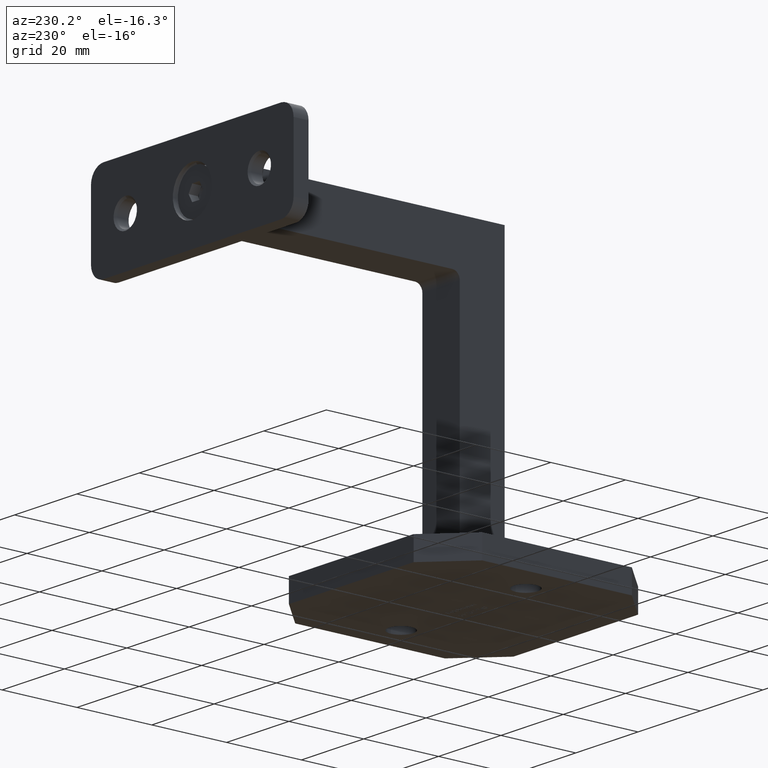
[diagram: clean part render]
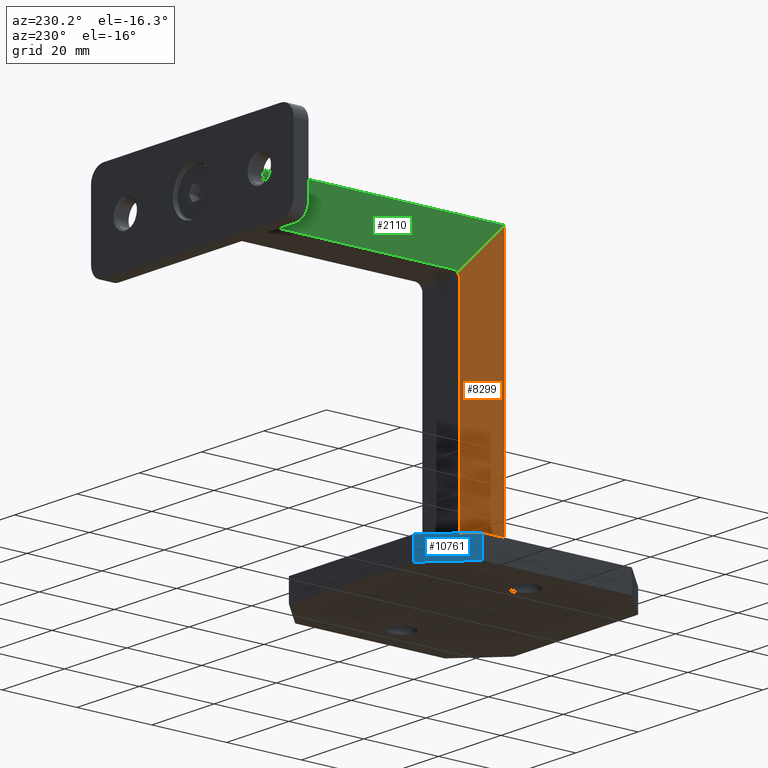
[diagram: same view with three faces highlighted in distinct colors, each labeled with its STEP entity id]
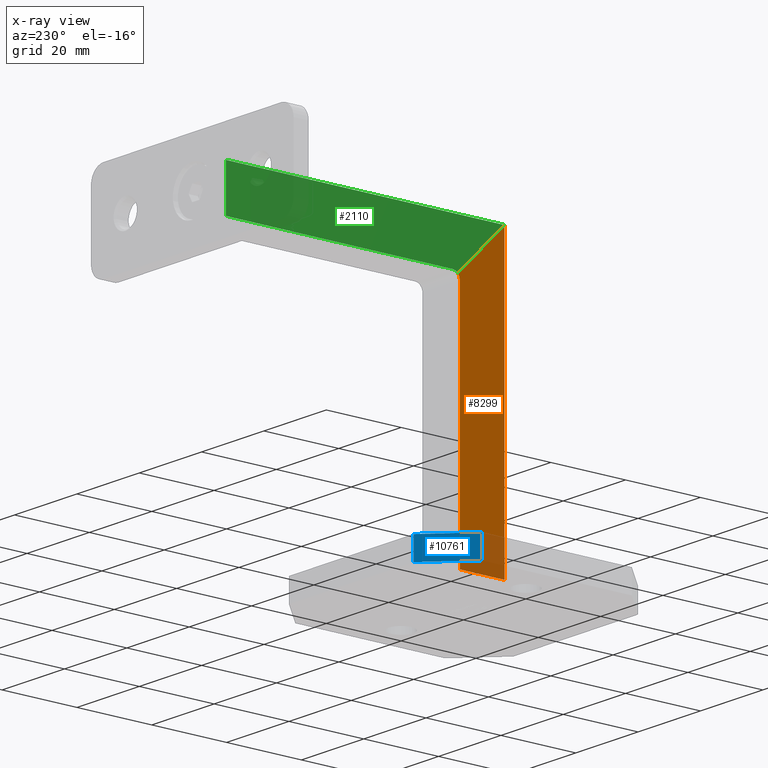
[diagram: x-ray of the same camera — body ghosted, the three highlighted faces saturated]
A machine part, auxiliary view with three faces highlighted in distinct colors.
The next image is the same camera in x-ray (body ghosted, the three faces saturated) — at least one of them is partly hidden behind the body in this view.
Their STEP definitions:

[orange] entity #8299 — the highlighted planar face has unit normal (-1, 0, 0).
#343 = EDGE_CURVE ( 'NONE', #11235, #4981, #14640, .T. ) ;
#377 = EDGE_CURVE ( 'NONE', #4981, #19620, #18167, .T. ) ;
#1007 = CARTESIAN_POINT ( 'NONE',  ( -5.999999999999999112, -6.000000000000000888, 3.070000000000003393 ) ) ;
#1370 = LINE ( 'NONE', #20113, #13351 ) ;
#2956 = CARTESIAN_POINT ( 'NONE',  ( -5.999999999999997335, 5.999999999999988454, 89.97056274847714974 ) ) ;
#3485 = CARTESIAN_POINT ( 'NONE',  ( -5.999999999999997335, 5.999999999999992006, 64.99999999999997158 ) ) ;
#4062 = VECTOR ( 'NONE', #15450, 1000.000000000000000 ) ;
#4668 = EDGE_CURVE ( 'NONE', #13799, #11235, #1370, .T. ) ;
#4721 = DIRECTION ( 'NONE',  ( -1.000000000000000000, 1.445602896647339410E-16, 1.770352960217306030E-32 ) ) ;
#4981 = VERTEX_POINT ( 'NONE', #3485 ) ;
#5536 = VECTOR ( 'NONE', #16904, 1000.000000000000000 ) ;
#5607 = DIRECTION ( 'NONE',  ( 0.000000000000000000, -1.000000000000000000, 2.081668171172168513E-14 ) ) ;
#6126 = LINE ( 'NONE', #14988, #5536 ) ;
#7038 = DIRECTION ( 'NONE',  ( -1.445602896647339410E-16, -1.000000000000000000, -0.000000000000000000 ) ) ;
#7383 = ORIENTED_EDGE ( 'NONE', *, *, #14973, .T. ) ;
#7425 = DIRECTION ( 'NONE',  ( 1.000000000000000000, -1.445602896647339410E-16, -1.770352960217306030E-32 ) ) ;
#8277 = CARTESIAN_POINT ( 'NONE',  ( -5.999999999999997335, 6.585786437626902412, 66.41421356237306384 ) ) ;
#8299 = ADVANCED_FACE ( 'NONE', ( #22687 ), #10227, .T. ) ;
#8374 = ORIENTED_EDGE ( 'NONE', *, *, #16254, .F. ) ;
#8852 = CARTESIAN_POINT ( 'NONE',  ( -5.999999999999999112, -6.000000000000011546, 78.99999999999997158 ) ) ;
#8960 = CARTESIAN_POINT ( 'NONE',  ( -5.999999999999999112, -6.000000000000000000, 3.070000000000000284 ) ) ;
#9432 = ORIENTED_EDGE ( 'NONE', *, *, #4668, .T. ) ;
#9656 = LINE ( 'NONE', #8960, #13492 ) ;
#10227 = PLANE ( 'NONE',  #22676 ) ;
#11235 = VERTEX_POINT ( 'NONE', #8277 ) ;
#13236 = ORIENTED_EDGE ( 'NONE', *, *, #377, .T. ) ;
#13351 = VECTOR ( 'NONE', #16620, 1000.000000000000000 ) ;
#13492 = VECTOR ( 'NONE', #7038, 1000.000000000000000 ) ;
#13799 = VERTEX_POINT ( 'NONE', #8852 ) ;
#14640 = CIRCLE ( 'NONE', #20690, 2.000000000000000000 ) ;
#14973 = EDGE_CURVE ( 'NONE', #19620, #23184, #9656, .T. ) ;
#14988 = CARTESIAN_POINT ( 'NONE',  ( -5.999999999999999112, -6.000000000000011546, 89.97056274847714974 ) ) ;
#15450 = DIRECTION ( 'NONE',  ( -0.000000000000000000, 1.224646799147353207E-16, -1.000000000000000000 ) ) ;
#15844 = DIRECTION ( 'NONE',  ( -1.445602896647339410E-16, -1.000000000000000000, 0.000000000000000000 ) ) ;
#16254 = EDGE_CURVE ( 'NONE', #13799, #23184, #6126, .T. ) ;
#16620 = DIRECTION ( 'NONE',  ( 1.022195611122249425E-16, 0.7071067811865475727, -0.7071067811865474617 ) ) ;
#16904 = DIRECTION ( 'NONE',  ( -0.000000000000000000, 1.224646799147353207E-16, -1.000000000000000000 ) ) ;
#18167 = LINE ( 'NONE', #22881, #4062 ) ;
#18656 = CARTESIAN_POINT ( 'NONE',  ( -5.999999999999997335, 7.999999999999992895, 64.99999999999997158 ) ) ;
#19620 = VERTEX_POINT ( 'NONE', #19906 ) ;
#19906 = CARTESIAN_POINT ( 'NONE',  ( -5.999999999999997335, 5.999999999999999112, 3.070000000000003393 ) ) ;
#20113 = CARTESIAN_POINT ( 'NONE',  ( -5.999999999999999112, -5.485281374238592633, 78.48528137423856776 ) ) ;
#20690 = AXIS2_PLACEMENT_3D ( 'NONE', #18656, #7425, #5607 ) ;
#21634 = ORIENTED_EDGE ( 'NONE', *, *, #343, .T. ) ;
#22264 = EDGE_LOOP ( 'NONE', ( #13236, #7383, #8374, #9432, #21634 ) ) ;
#22676 = AXIS2_PLACEMENT_3D ( 'NONE', #2956, #4721, #15844 ) ;
#22687 = FACE_OUTER_BOUND ( 'NONE', #22264, .T. ) ;
#22881 = CARTESIAN_POINT ( 'NONE',  ( -5.999999999999997335, 5.999999999999988454, 89.97056274847714974 ) ) ;
#23184 = VERTEX_POINT ( 'NONE', #1007 ) ;

[blue] entity #10761 — the highlighted planar face has unit normal (0.7071, -0.7071, 0).
#2135 = VECTOR ( 'NONE', #16357, 1000.000000000000000 ) ;
#2152 = VERTEX_POINT ( 'NONE', #10576 ) ;
#3151 = VERTEX_POINT ( 'NONE', #7942 ) ;
#3682 = AXIS2_PLACEMENT_3D ( 'NONE', #23293, #13861, #16104 ) ;
#3804 = DIRECTION ( 'NONE',  ( 0.000000000000000000, 0.000000000000000000, 1.000000000000000000 ) ) ;
#7713 = CARTESIAN_POINT ( 'NONE',  ( -19.99999999999999289, 30.00000000000000711, 3.000000000000000000 ) ) ;
#7875 = EDGE_CURVE ( 'NONE', #3151, #2152, #22986, .T. ) ;
#7942 = CARTESIAN_POINT ( 'NONE',  ( -30.00000000000001066, 20.00000000000002487, -3.000000000000000000 ) ) ;
#8427 = CARTESIAN_POINT ( 'NONE',  ( -24.99999999999995737, 25.00000000000006395, 3.000000000000000000 ) ) ;
#9483 = VECTOR ( 'NONE', #19536, 1000.000000000000114 ) ;
#9532 = VERTEX_POINT ( 'NONE', #7713 ) ;
#9720 = LINE ( 'NONE', #23469, #2135 ) ;
#10277 = CARTESIAN_POINT ( 'NONE',  ( -30.00000000000001066, 20.00000000000003197, 3.000000000000000000 ) ) ;
#10401 = PLANE ( 'NONE',  #3682 ) ;
#10576 = CARTESIAN_POINT ( 'NONE',  ( -19.99999999999998579, 30.00000000000000711, -3.000000000000000000 ) ) ;
#10761 = ADVANCED_FACE ( 'NONE', ( #13873 ), #10401, .F. ) ;
#11683 = ORIENTED_EDGE ( 'NONE', *, *, #7875, .F. ) ;
#11990 = EDGE_CURVE ( 'NONE', #14746, #3151, #9720, .T. ) ;
#13402 = CARTESIAN_POINT ( 'NONE',  ( -19.99999999999998579, 30.00000000000000711, 3.000000000000000000 ) ) ;
#13861 = DIRECTION ( 'NONE',  ( 0.7071067811865461294, -0.7071067811865490160, 0.000000000000000000 ) ) ;
#13873 = FACE_OUTER_BOUND ( 'NONE', #22219, .T. ) ;
#14746 = VERTEX_POINT ( 'NONE', #10277 ) ;
#15628 = ORIENTED_EDGE ( 'NONE', *, *, #11990, .F. ) ;
#15743 = DIRECTION ( 'NONE',  ( -0.7071067811865489050, -0.7071067811865460184, -0.000000000000000000 ) ) ;
#16104 = DIRECTION ( 'NONE',  ( 0.000000000000000000, 0.000000000000000000, -1.000000000000000000 ) ) ;
#16357 = DIRECTION ( 'NONE',  ( 0.000000000000000000, 0.000000000000000000, -1.000000000000000000 ) ) ;
#16838 = EDGE_CURVE ( 'NONE', #2152, #9532, #18454, .T. ) ;
#17591 = CARTESIAN_POINT ( 'NONE',  ( -30.00000000000001066, 20.00000000000002487, -3.000000000000000000 ) ) ;
#17839 = VECTOR ( 'NONE', #3804, 1000.000000000000000 ) ;
#18293 = ORIENTED_EDGE ( 'NONE', *, *, #20154, .F. ) ;
#18454 = LINE ( 'NONE', #13402, #17839 ) ;
#19536 = DIRECTION ( 'NONE',  ( 0.7071067811865489050, 0.7071067811865460184, -0.000000000000000000 ) ) ;
#19546 = LINE ( 'NONE', #8427, #23363 ) ;
#20154 = EDGE_CURVE ( 'NONE', #9532, #14746, #19546, .T. ) ;
#20207 = ORIENTED_EDGE ( 'NONE', *, *, #16838, .F. ) ;
#22219 = EDGE_LOOP ( 'NONE', ( #18293, #20207, #11683, #15628 ) ) ;
#22986 = LINE ( 'NONE', #17591, #9483 ) ;
#23293 = CARTESIAN_POINT ( 'NONE',  ( -30.00000000000001066, 20.00000000000002487, 3.000000000000000000 ) ) ;
#23363 = VECTOR ( 'NONE', #15743, 1000.000000000000114 ) ;
#23469 = CARTESIAN_POINT ( 'NONE',  ( -30.00000000000001066, 20.00000000000002487, 3.000000000000000000 ) ) ;

[green] entity #2110 — the highlighted planar face has unit normal (1, 0, 0).
#364 = DIRECTION ( 'NONE',  ( 0.000000000000000000, 1.000000000000000000, 0.000000000000000000 ) ) ;
#873 = CARTESIAN_POINT ( 'NONE',  ( -5.999999999999999112, 68.49999999999998579, 78.99999999999997158 ) ) ;
#1370 = LINE ( 'NONE', #20113, #13351 ) ;
#1438 = DIRECTION ( 'NONE',  ( 1.445602896647339410E-16, 0.000000000000000000, -1.000000000000000000 ) ) ;
#2110 = ADVANCED_FACE ( 'NONE', ( #17852 ), #18306, .F. ) ;
#2411 = CARTESIAN_POINT ( 'NONE',  ( -5.999999999999997335, 7.999999999999992895, 66.99999999999997158 ) ) ;
#2417 = DIRECTION ( 'NONE',  ( 0.000000000000000000, 1.000000000000000000, 0.000000000000000000 ) ) ;
#3694 = EDGE_LOOP ( 'NONE', ( #21622, #14329, #7866, #7950, #11506 ) ) ;
#4582 = LINE ( 'NONE', #6269, #23983 ) ;
#4668 = EDGE_CURVE ( 'NONE', #13799, #11235, #1370, .T. ) ;
#6269 = CARTESIAN_POINT ( 'NONE',  ( -5.999999999999997335, 5.999999999999991118, 66.99999999999997158 ) ) ;
#6781 = CARTESIAN_POINT ( 'NONE',  ( -5.999999999999997335, 7.999999999999992895, 64.99999999999997158 ) ) ;
#7141 = VECTOR ( 'NONE', #364, 1000.000000000000000 ) ;
#7680 = CIRCLE ( 'NONE', #7688, 2.000000000000001776 ) ;
#7688 = AXIS2_PLACEMENT_3D ( 'NONE', #6781, #21913, #18242 ) ;
#7866 = ORIENTED_EDGE ( 'NONE', *, *, #13024, .T. ) ;
#7950 = ORIENTED_EDGE ( 'NONE', *, *, #4668, .F. ) ;
#8277 = CARTESIAN_POINT ( 'NONE',  ( -5.999999999999997335, 6.585786437626902412, 66.41421356237306384 ) ) ;
#8803 = EDGE_CURVE ( 'NONE', #13799, #18704, #14454, .T. ) ;
#8852 = CARTESIAN_POINT ( 'NONE',  ( -5.999999999999999112, -6.000000000000011546, 78.99999999999997158 ) ) ;
#9440 = CARTESIAN_POINT ( 'NONE',  ( -5.999999999999999112, -6.000000000000011546, 78.99999999999997158 ) ) ;
#11235 = VERTEX_POINT ( 'NONE', #8277 ) ;
#11506 = ORIENTED_EDGE ( 'NONE', *, *, #8803, .T. ) ;
#11596 = CARTESIAN_POINT ( 'NONE',  ( -5.999999999999999112, 68.49999999999998579, 78.48528137423856776 ) ) ;
#12540 = AXIS2_PLACEMENT_3D ( 'NONE', #20173, #16504, #1438 ) ;
#13024 = EDGE_CURVE ( 'NONE', #13531, #11235, #7680, .T. ) ;
#13351 = VECTOR ( 'NONE', #16620, 1000.000000000000000 ) ;
#13531 = VERTEX_POINT ( 'NONE', #2411 ) ;
#13799 = VERTEX_POINT ( 'NONE', #8852 ) ;
#14329 = ORIENTED_EDGE ( 'NONE', *, *, #23683, .F. ) ;
#14426 = VERTEX_POINT ( 'NONE', #15309 ) ;
#14454 = LINE ( 'NONE', #9440, #7141 ) ;
#15309 = CARTESIAN_POINT ( 'NONE',  ( -5.999999999999997335, 68.49999999999998579, 66.99999999999997158 ) ) ;
#16504 = DIRECTION ( 'NONE',  ( 1.000000000000000000, -0.000000000000000000, 1.445602896647339410E-16 ) ) ;
#16620 = DIRECTION ( 'NONE',  ( 1.022195611122249425E-16, 0.7071067811865475727, -0.7071067811865474617 ) ) ;
#17852 = FACE_OUTER_BOUND ( 'NONE', #3694, .T. ) ;
#18242 = DIRECTION ( 'NONE',  ( 0.000000000000000000, 0.000000000000000000, -1.000000000000000000 ) ) ;
#18306 = PLANE ( 'NONE',  #12540 ) ;
#18456 = EDGE_CURVE ( 'NONE', #14426, #18704, #23678, .T. ) ;
#18704 = VERTEX_POINT ( 'NONE', #873 ) ;
#20113 = CARTESIAN_POINT ( 'NONE',  ( -5.999999999999999112, -5.485281374238592633, 78.48528137423856776 ) ) ;
#20173 = CARTESIAN_POINT ( 'NONE',  ( -5.999999999999999112, -5.485281374238592633, 78.48528137423856776 ) ) ;
#21622 = ORIENTED_EDGE ( 'NONE', *, *, #18456, .F. ) ;
#21640 = VECTOR ( 'NONE', #22903, 1000.000000000000000 ) ;
#21913 = DIRECTION ( 'NONE',  ( 1.000000000000000000, -0.000000000000000000, 1.445602896647339410E-16 ) ) ;
#22903 = DIRECTION ( 'NONE',  ( -1.445602896647339410E-16, 0.000000000000000000, 1.000000000000000000 ) ) ;
#23678 = LINE ( 'NONE', #11596, #21640 ) ;
#23683 = EDGE_CURVE ( 'NONE', #13531, #14426, #4582, .T. ) ;
#23983 = VECTOR ( 'NONE', #2417, 1000.000000000000000 ) ;